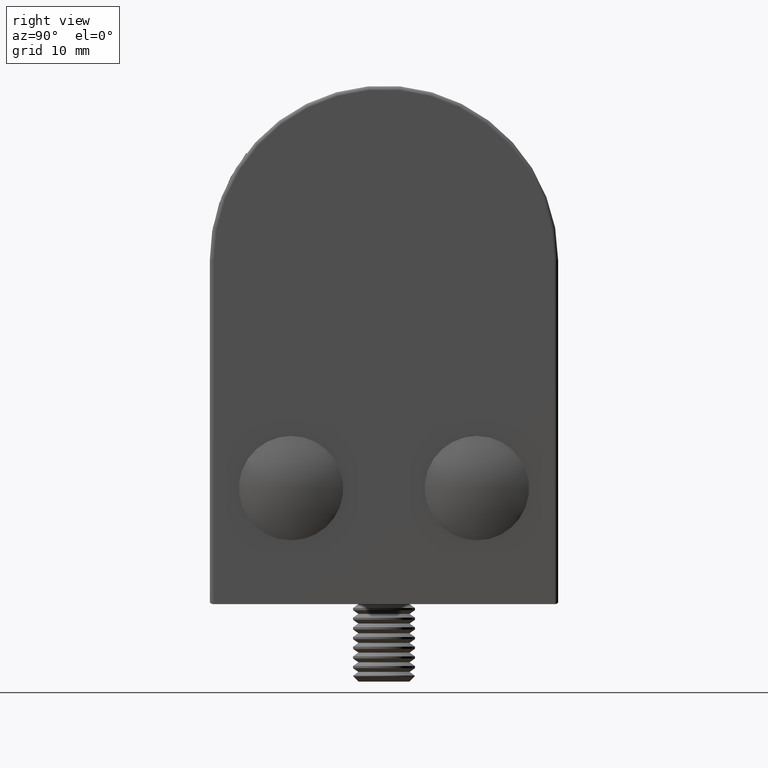
[diagram: clean part render]
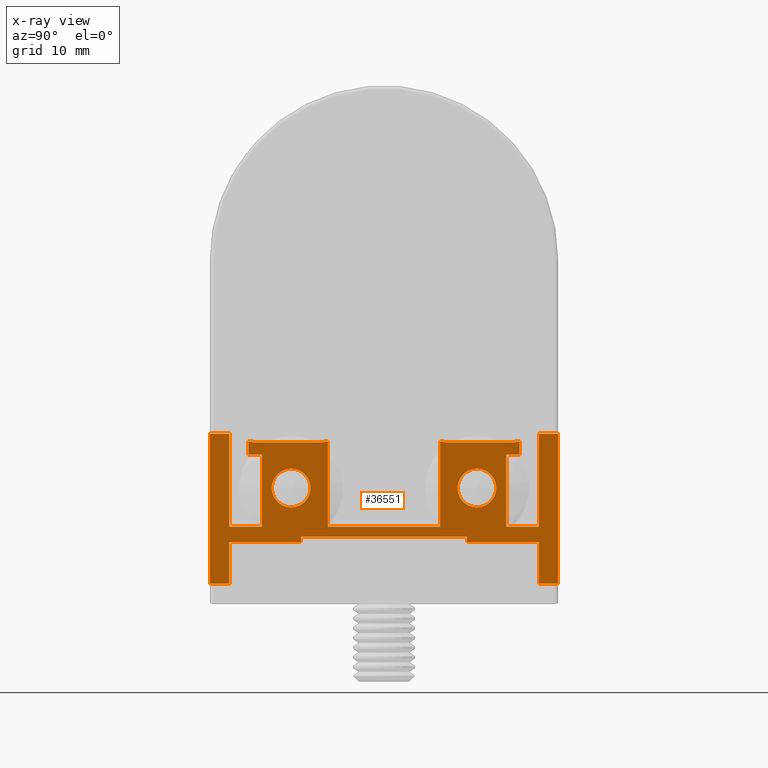
[diagram: x-ray — body ghosted, one internal face saturated and labeled with its STEP entity id]
A machine part, right view, then the same camera in x-ray: the body is ghosted and one INTERNAL B-rep face — a face not visible from any outside direction — is saturated and labeled: STEP entity #36551.
In plain terms, the highlighted planar face has unit normal (-1, 0, 0).
Its self-contained STEP definition (entity closure, byte-faithful):
#713 = LINE ( 'NONE', #3083, #81065 ) ;
#777 = VECTOR ( 'NONE', #25656, 1000.000000000000000 ) ;
#900 = EDGE_CURVE ( 'NONE', #73061, #73061, #46361, .T. ) ;
#954 = CARTESIAN_POINT ( 'NONE',  ( 24.00000000000000000, 22.50000000000001776, 17.99999999999999645 ) ) ;
#1290 = DIRECTION ( 'NONE',  ( 1.000000000000000000, -0.000000000000000000, -0.000000000000000000 ) ) ;
#1360 = LINE ( 'NONE', #31201, #68879 ) ;
#1392 = LINE ( 'NONE', #8688, #34103 ) ;
#1429 = LINE ( 'NONE', #28836, #56140 ) ;
#1437 = CARTESIAN_POINT ( 'NONE',  ( 24.00000000000000000, 17.50000000000002132, 17.00000000000000000 ) ) ;
#1683 = VECTOR ( 'NONE', #14181, 1000.000000000000000 ) ;
#1765 = VERTEX_POINT ( 'NONE', #2342 ) ;
#1959 = CARTESIAN_POINT ( 'NONE',  ( 24.00000000000000000, 20.00000000000002132, 4.000000000000000000 ) ) ;
#2144 = EDGE_CURVE ( 'NONE', #62094, #57993, #60110, .T. ) ;
#2207 = VECTOR ( 'NONE', #55996, 1000.000000000000000 ) ;
#2342 = CARTESIAN_POINT ( 'NONE',  ( 24.00000000000000000, -20.00000000000002132, 6.000000000000000000 ) ) ;
#2557 = CARTESIAN_POINT ( 'NONE',  ( 24.00000000000000000, 0.000000000000000000, 0.000000000000000000 ) ) ;
#2763 = LINE ( 'NONE', #51614, #11643 ) ;
#3083 = CARTESIAN_POINT ( 'NONE',  ( 24.00000000000000000, -22.50000000000002132, 6.000000000000000000 ) ) ;
#3115 = CARTESIAN_POINT ( 'NONE',  ( 24.00000000000000000, 17.50000000000002132, 15.30000000000000071 ) ) ;
#3128 = CARTESIAN_POINT ( 'NONE',  ( 24.00000000000000000, -20.00000000000002132, 3.999999999999994671 ) ) ;
#3353 = CARTESIAN_POINT ( 'NONE',  ( 24.00000000000000000, 11.99999999999999822, 8.500000000000010658 ) ) ;
#4610 = VECTOR ( 'NONE', #54502, 1000.000000000000000 ) ;
#4830 = CARTESIAN_POINT ( 'NONE',  ( 24.00000000000000000, -10.69999999999999929, 0.000000000000000000 ) ) ;
#4929 = ORIENTED_EDGE ( 'NONE', *, *, #27480, .T. ) ;
#4989 = DIRECTION ( 'NONE',  ( 0.000000000000000000, 1.000000000000000000, 0.000000000000000000 ) ) ;
#5155 = AXIS2_PLACEMENT_3D ( 'NONE', #79544, #10189, #55286 ) ;
#5201 = CARTESIAN_POINT ( 'NONE',  ( 24.00000000000000000, -20.00000000000002132, 17.99999999999999289 ) ) ;
#5588 = LINE ( 'NONE', #72637, #71142 ) ;
#5728 = CARTESIAN_POINT ( 'NONE',  ( 24.00000000000000000, -10.69999999999999929, 4.700000000000000178 ) ) ;
#6660 = VECTOR ( 'NONE', #68426, 1000.000000000000000 ) ;
#7340 = VECTOR ( 'NONE', #62453, 1000.000000000000000 ) ;
#7358 = LINE ( 'NONE', #25835, #48160 ) ;
#8158 = DIRECTION ( 'NONE',  ( -0.000000000000000000, -1.000000000000000000, -0.000000000000000000 ) ) ;
#8234 = LINE ( 'NONE', #43665, #73779 ) ;
#8268 = ORIENTED_EDGE ( 'NONE', *, *, #36041, .T. ) ;
#8326 = CARTESIAN_POINT ( 'NONE',  ( 24.00000000000000000, -12.00000000000000178, 8.500000000000007105 ) ) ;
#8418 = VERTEX_POINT ( 'NONE', #71750 ) ;
#8688 = CARTESIAN_POINT ( 'NONE',  ( 24.00000000000000000, -20.00000000000002132, 3.999999999999994671 ) ) ;
#8928 = AXIS2_PLACEMENT_3D ( 'NONE', #2557, #41398, #15282 ) ;
#9229 = ORIENTED_EDGE ( 'NONE', *, *, #30100, .F. ) ;
#9234 = DIRECTION ( 'NONE',  ( -0.000000000000000000, 1.000000000000000000, -0.000000000000000000 ) ) ;
#9328 = LINE ( 'NONE', #37087, #61084 ) ;
#9551 = VERTEX_POINT ( 'NONE', #1959 ) ;
#9792 = CARTESIAN_POINT ( 'NONE',  ( 24.00000000000000000, 20.00000000000002487, -1.374619898253302219 ) ) ;
#10004 = CARTESIAN_POINT ( 'NONE',  ( 24.00000000000000000, 15.80000000000002203, 6.000000000000000000 ) ) ;
#10146 = VERTEX_POINT ( 'NONE', #63277 ) ;
#10155 = EDGE_CURVE ( 'NONE', #77095, #11412, #74743, .T. ) ;
#10189 = DIRECTION ( 'NONE',  ( 1.000000000000000000, -0.000000000000000000, -0.000000000000000000 ) ) ;
#10477 = VERTEX_POINT ( 'NONE', #48234 ) ;
#10491 = ORIENTED_EDGE ( 'NONE', *, *, #68325, .F. ) ;
#11100 = EDGE_CURVE ( 'NONE', #25748, #25370, #8234, .T. ) ;
#11412 = VERTEX_POINT ( 'NONE', #56442 ) ;
#11581 = CARTESIAN_POINT ( 'NONE',  ( 24.00000000000000000, -20.00000000000002132, 17.99999999999999289 ) ) ;
#11615 = CARTESIAN_POINT ( 'NONE',  ( 24.00000000000000000, 7.250000000000000000, 17.00000000000000000 ) ) ;
#11643 = VECTOR ( 'NONE', #14030, 1000.000000000000000 ) ;
#12102 = EDGE_CURVE ( 'NONE', #21797, #9551, #17307, .T. ) ;
#12113 = AXIS2_PLACEMENT_3D ( 'NONE', #45482, #1290, #13765 ) ;
#12221 = VECTOR ( 'NONE', #54851, 1000.000000000000000 ) ;
#13247 = VECTOR ( 'NONE', #75721, 1000.000000000000000 ) ;
#13461 = VECTOR ( 'NONE', #30396, 1000.000000000000000 ) ;
#13765 = DIRECTION ( 'NONE',  ( 0.000000000000000000, 0.000000000000000000, -1.000000000000000000 ) ) ;
#13885 = CARTESIAN_POINT ( 'NONE',  ( 24.00000000000000000, 17.00000000000002487, 16.89999999999999503 ) ) ;
#14030 = DIRECTION ( 'NONE',  ( 0.000000000000000000, 0.000000000000000000, 1.000000000000000000 ) ) ;
#14181 = DIRECTION ( 'NONE',  ( 0.000000000000000000, 0.000000000000000000, -1.000000000000000000 ) ) ;
#14749 = ORIENTED_EDGE ( 'NONE', *, *, #39637, .F. ) ;
#14931 = VERTEX_POINT ( 'NONE', #58388 ) ;
#15282 = DIRECTION ( 'NONE',  ( -0.000000000000000000, 0.000000000000000000, 1.000000000000000000 ) ) ;
#15384 = EDGE_CURVE ( 'NONE', #57993, #72293, #5588, .T. ) ;
#15500 = VECTOR ( 'NONE', #48089, 1000.000000000000000 ) ;
#15537 = ORIENTED_EDGE ( 'NONE', *, *, #54834, .F. ) ;
#15595 = LINE ( 'NONE', #58683, #1683 ) ;
#15750 = VERTEX_POINT ( 'NONE', #51144 ) ;
#15896 = DIRECTION ( 'NONE',  ( 0.000000000000000000, 1.000000000000000000, 1.301042606982604088E-16 ) ) ;
#16310 = LINE ( 'NONE', #49765, #46137 ) ;
#16410 = VECTOR ( 'NONE', #20182, 1000.000000000000000 ) ;
#17045 = CARTESIAN_POINT ( 'NONE',  ( 24.00000000000000000, 0.000000000000000000, 4.700000000000000178 ) ) ;
#17233 = ORIENTED_EDGE ( 'NONE', *, *, #70701, .F. ) ;
#17307 = LINE ( 'NONE', #3128, #19286 ) ;
#17380 = VERTEX_POINT ( 'NONE', #78059 ) ;
#17525 = EDGE_CURVE ( 'NONE', #40630, #56788, #1392, .T. ) ;
#18002 = DIRECTION ( 'NONE',  ( -0.000000000000000000, 1.927470528863119542E-16, -1.000000000000000000 ) ) ;
#18013 = ORIENTED_EDGE ( 'NONE', *, *, #40698, .F. ) ;
#18155 = LINE ( 'NONE', #46179, #51958 ) ;
#18164 = LINE ( 'NONE', #81032, #37010 ) ;
#19286 = VECTOR ( 'NONE', #15896, 1000.000000000000000 ) ;
#19564 = VERTEX_POINT ( 'NONE', #48669 ) ;
#19580 = EDGE_CURVE ( 'NONE', #11412, #82252, #22363, .T. ) ;
#19740 = CARTESIAN_POINT ( 'NONE',  ( 24.00000000000000000, 17.00000000000002487, 16.99999999999999289 ) ) ;
#19909 = ORIENTED_EDGE ( 'NONE', *, *, #15384, .F. ) ;
#20182 = DIRECTION ( 'NONE',  ( 0.000000000000000000, 1.000000000000000000, 0.000000000000000000 ) ) ;
#20527 = CARTESIAN_POINT ( 'NONE',  ( 24.00000000000000000, 7.250000000000000000, 17.00000000000000000 ) ) ;
#21238 = CARTESIAN_POINT ( 'NONE',  ( 24.00000000000000000, 7.750000000000000888, 16.99999999999999289 ) ) ;
#21650 = CARTESIAN_POINT ( 'NONE',  ( 24.00000000000000000, -20.00000000000002132, 3.999999999999994671 ) ) ;
#21797 = VERTEX_POINT ( 'NONE', #60632 ) ;
#22014 = EDGE_CURVE ( 'NONE', #44406, #10477, #60942, .T. ) ;
#22324 = CARTESIAN_POINT ( 'NONE',  ( 24.00000000000000000, -22.50000000000002132, 17.99999999999999645 ) ) ;
#22363 = LINE ( 'NONE', #23313, #64005 ) ;
#23011 = FACE_BOUND ( 'NONE', #32308, .T. ) ;
#23313 = CARTESIAN_POINT ( 'NONE',  ( 24.00000000000000000, 7.750000000000000888, 16.89999999999999503 ) ) ;
#23419 = DIRECTION ( 'NONE',  ( 0.000000000000000000, 1.000000000000000000, 1.387778780781444256E-14 ) ) ;
#23486 = VERTEX_POINT ( 'NONE', #34052 ) ;
#23636 = ORIENTED_EDGE ( 'NONE', *, *, #12102, .T. ) ;
#23916 = CARTESIAN_POINT ( 'NONE',  ( 24.00000000000000000, -17.00000000000002487, 16.99999999999999289 ) ) ;
#25005 = VECTOR ( 'NONE', #51880, 1000.000000000000000 ) ;
#25370 = VERTEX_POINT ( 'NONE', #65888 ) ;
#25656 = DIRECTION ( 'NONE',  ( -0.000000000000000000, -0.000000000000000000, 1.000000000000000000 ) ) ;
#25748 = VERTEX_POINT ( 'NONE', #33785 ) ;
#25835 = CARTESIAN_POINT ( 'NONE',  ( 24.00000000000000000, 20.00000000000002487, -3.061616997868368350E-16 ) ) ;
#26087 = VERTEX_POINT ( 'NONE', #3115 ) ;
#26101 = DIRECTION ( 'NONE',  ( 0.000000000000000000, 0.000000000000000000, 1.000000000000000000 ) ) ;
#26484 = ORIENTED_EDGE ( 'NONE', *, *, #44401, .F. ) ;
#26787 = DIRECTION ( 'NONE',  ( -0.000000000000000000, -1.000000000000000000, 1.387778780781446464E-15 ) ) ;
#27427 = EDGE_CURVE ( 'NONE', #10477, #19564, #7358, .T. ) ;
#27480 = EDGE_CURVE ( 'NONE', #8418, #44406, #70944, .T. ) ;
#27638 = DIRECTION ( 'NONE',  ( 0.000000000000000000, 0.000000000000000000, -1.000000000000000000 ) ) ;
#27662 = EDGE_CURVE ( 'NONE', #1765, #66866, #35170, .T. ) ;
#27667 = EDGE_CURVE ( 'NONE', #57309, #10146, #16310, .T. ) ;
#28836 = CARTESIAN_POINT ( 'NONE',  ( 24.00000000000000000, 20.00000000000002487, -3.061616997868368350E-16 ) ) ;
#30100 = EDGE_CURVE ( 'NONE', #25370, #23486, #2763, .T. ) ;
#30221 = CARTESIAN_POINT ( 'NONE',  ( 24.00000000000000000, -15.80000000000002203, 6.000000000000000000 ) ) ;
#30396 = DIRECTION ( 'NONE',  ( 0.000000000000000000, 0.000000000000000000, 1.000000000000000000 ) ) ;
#30729 = EDGE_CURVE ( 'NONE', #78534, #1765, #713, .T. ) ;
#30993 = DIRECTION ( 'NONE',  ( 0.000000000000000000, 0.000000000000000000, -1.000000000000000000 ) ) ;
#31201 = CARTESIAN_POINT ( 'NONE',  ( 24.00000000000000000, -22.50000000000002132, 6.000000000000000000 ) ) ;
#31476 = LINE ( 'NONE', #73498, #15500 ) ;
#31629 = EDGE_CURVE ( 'NONE', #66866, #57309, #50438, .T. ) ;
#31954 = ORIENTED_EDGE ( 'NONE', *, *, #35511, .T. ) ;
#32308 = EDGE_LOOP ( 'NONE', ( #64394 ) ) ;
#33030 = VECTOR ( 'NONE', #8158, 1000.000000000000000 ) ;
#33286 = ORIENTED_EDGE ( 'NONE', *, *, #62155, .F. ) ;
#33559 = ORIENTED_EDGE ( 'NONE', *, *, #47246, .T. ) ;
#33757 = CARTESIAN_POINT ( 'NONE',  ( 24.00000000000000000, -22.50000000000002132, 6.000000000000000000 ) ) ;
#33785 = CARTESIAN_POINT ( 'NONE',  ( 24.00000000000000000, -15.80000000000002203, 15.30000000000000071 ) ) ;
#34052 = CARTESIAN_POINT ( 'NONE',  ( 24.00000000000000000, -17.50000000000002132, 17.00000000000000000 ) ) ;
#34103 = VECTOR ( 'NONE', #40637, 1000.000000000000000 ) ;
#34539 = EDGE_CURVE ( 'NONE', #81901, #81901, #63024, .T. ) ;
#34667 = ORIENTED_EDGE ( 'NONE', *, *, #17525, .T. ) ;
#34872 = EDGE_CURVE ( 'NONE', #19564, #79230, #1360, .T. ) ;
#35170 = LINE ( 'NONE', #5201, #59058 ) ;
#35466 = VECTOR ( 'NONE', #26787, 1000.000000000000000 ) ;
#35511 = EDGE_CURVE ( 'NONE', #43761, #36358, #58971, .T. ) ;
#35617 = EDGE_CURVE ( 'NONE', #72293, #17380, #45018, .T. ) ;
#36041 = EDGE_CURVE ( 'NONE', #10146, #50351, #69817, .T. ) ;
#36151 = ORIENTED_EDGE ( 'NONE', *, *, #34539, .F. ) ;
#36358 = VERTEX_POINT ( 'NONE', #36488 ) ;
#36488 = CARTESIAN_POINT ( 'NONE',  ( 24.00000000000000000, 10.69999999999999929, 4.700000000000000178 ) ) ;
#36551 = ADVANCED_FACE ( 'NONE', ( #43991, #52914, #23011 ), #78246, .F. ) ;
#36917 = VECTOR ( 'NONE', #47722, 1000.000000000000000 ) ;
#37010 = VECTOR ( 'NONE', #80446, 1000.000000000000000 ) ;
#37087 = CARTESIAN_POINT ( 'NONE',  ( 24.00000000000000000, 15.80000000000002203, 15.30000000000000071 ) ) ;
#37418 = ORIENTED_EDGE ( 'NONE', *, *, #34872, .T. ) ;
#37566 = DIRECTION ( 'NONE',  ( -0.000000000000000000, -1.000000000000000000, -0.000000000000000000 ) ) ;
#37846 = ORIENTED_EDGE ( 'NONE', *, *, #31629, .T. ) ;
#37968 = ORIENTED_EDGE ( 'NONE', *, *, #68224, .T. ) ;
#38119 = LINE ( 'NONE', #13885, #61013 ) ;
#38419 = EDGE_CURVE ( 'NONE', #14931, #79230, #9328, .T. ) ;
#38941 = DIRECTION ( 'NONE',  ( -0.000000000000000000, -0.000000000000000000, 1.000000000000000000 ) ) ;
#39637 = EDGE_CURVE ( 'NONE', #23486, #46253, #41921, .T. ) ;
#40278 = VERTEX_POINT ( 'NONE', #9792 ) ;
#40332 = ORIENTED_EDGE ( 'NONE', *, *, #27427, .T. ) ;
#40577 = EDGE_CURVE ( 'NONE', #55719, #26087, #15595, .T. ) ;
#40630 = VERTEX_POINT ( 'NONE', #21650 ) ;
#40637 = DIRECTION ( 'NONE',  ( 0.000000000000000000, 1.000000000000000000, 1.301042606982604088E-16 ) ) ;
#40698 = EDGE_CURVE ( 'NONE', #49402, #55719, #31476, .T. ) ;
#41398 = DIRECTION ( 'NONE',  ( -1.000000000000000000, 0.000000000000000000, -0.000000000000000000 ) ) ;
#41521 = ORIENTED_EDGE ( 'NONE', *, *, #72032, .T. ) ;
#41921 = LINE ( 'NONE', #66533, #36917 ) ;
#42011 = VECTOR ( 'NONE', #23419, 1000.000000000000000 ) ;
#42347 = CARTESIAN_POINT ( 'NONE',  ( 24.00000000000000000, 10.69999999999999929, 0.000000000000000000 ) ) ;
#43294 = LINE ( 'NONE', #4830, #13461 ) ;
#43665 = CARTESIAN_POINT ( 'NONE',  ( 24.00000000000000000, -17.50000000000002132, 15.30000000000000071 ) ) ;
#43761 = VERTEX_POINT ( 'NONE', #5728 ) ;
#43991 = FACE_BOUND ( 'NONE', #46346, .T. ) ;
#44082 = VECTOR ( 'NONE', #75781, 1000.000000000000000 ) ;
#44401 = EDGE_CURVE ( 'NONE', #78534, #25748, #18155, .T. ) ;
#44406 = VERTEX_POINT ( 'NONE', #954 ) ;
#44526 = CARTESIAN_POINT ( 'NONE',  ( 24.00000000000000000, 7.250000000000002665, 6.000000000000000000 ) ) ;
#44570 = CARTESIAN_POINT ( 'NONE',  ( 24.00000000000000000, -20.00000000000002132, -1.374619898253302219 ) ) ;
#44823 = CARTESIAN_POINT ( 'NONE',  ( 24.00000000000000000, -20.00000000000002132, 17.99999999999999289 ) ) ;
#45018 = LINE ( 'NONE', #67561, #42011 ) ;
#45420 = CARTESIAN_POINT ( 'NONE',  ( 24.00000000000000000, -10.69999999999999929, 3.999999999999995559 ) ) ;
#45482 = CARTESIAN_POINT ( 'NONE',  ( 24.00000000000000000, 11.99999999999999822, 11.00000000000000178 ) ) ;
#45872 = EDGE_CURVE ( 'NONE', #17380, #15750, #50424, .T. ) ;
#45942 = CARTESIAN_POINT ( 'NONE',  ( 24.00000000000000000, 7.750000000000000888, 16.99999999999999289 ) ) ;
#46022 = CARTESIAN_POINT ( 'NONE',  ( 24.00000000000000000, 17.50000000000002132, 15.30000000000000071 ) ) ;
#46137 = VECTOR ( 'NONE', #72127, 1000.000000000000000 ) ;
#46179 = CARTESIAN_POINT ( 'NONE',  ( 24.00000000000000000, -15.80000000000002203, 15.30000000000000071 ) ) ;
#46253 = VERTEX_POINT ( 'NONE', #23916 ) ;
#46346 = EDGE_LOOP ( 'NONE', ( #36151 ) ) ;
#46361 = CIRCLE ( 'NONE', #5155, 2.499999999999990230 ) ;
#47242 = CARTESIAN_POINT ( 'NONE',  ( 24.00000000000000000, 22.50000000000001776, 17.99999999999999645 ) ) ;
#47246 = EDGE_CURVE ( 'NONE', #56788, #43761, #43294, .T. ) ;
#47722 = DIRECTION ( 'NONE',  ( 0.000000000000000000, 1.000000000000000000, -1.387778780781454195E-14 ) ) ;
#47997 = VECTOR ( 'NONE', #27638, 1000.000000000000000 ) ;
#48089 = DIRECTION ( 'NONE',  ( 0.000000000000000000, 1.000000000000000000, 1.387778780781454195E-14 ) ) ;
#48160 = VECTOR ( 'NONE', #76575, 1000.000000000000000 ) ;
#48234 = CARTESIAN_POINT ( 'NONE',  ( 24.00000000000000000, 20.00000000000002132, 17.99999999999999645 ) ) ;
#48447 = ORIENTED_EDGE ( 'NONE', *, *, #54748, .T. ) ;
#48669 = CARTESIAN_POINT ( 'NONE',  ( 24.00000000000000000, 20.00000000000001776, 6.000000000000000000 ) ) ;
#49193 = ORIENTED_EDGE ( 'NONE', *, *, #2144, .F. ) ;
#49402 = VERTEX_POINT ( 'NONE', #19740 ) ;
#49504 = DIRECTION ( 'NONE',  ( 0.000000000000000000, -1.000000000000000000, 0.000000000000000000 ) ) ;
#49765 = CARTESIAN_POINT ( 'NONE',  ( 24.00000000000000000, -22.50000000000001776, 0.000000000000000000 ) ) ;
#50351 = VERTEX_POINT ( 'NONE', #44570 ) ;
#50424 = LINE ( 'NONE', #61373, #4610 ) ;
#50438 = LINE ( 'NONE', #22324, #35466 ) ;
#51144 = CARTESIAN_POINT ( 'NONE',  ( 24.00000000000000000, -7.250000000000000000, 5.999999999999998224 ) ) ;
#51614 = CARTESIAN_POINT ( 'NONE',  ( 24.00000000000000000, -17.50000000000002132, 17.00000000000000000 ) ) ;
#51741 = EDGE_CURVE ( 'NONE', #50351, #40630, #53449, .T. ) ;
#51880 = DIRECTION ( 'NONE',  ( 0.000000000000000000, -1.000000000000000000, 0.000000000000000000 ) ) ;
#51958 = VECTOR ( 'NONE', #76919, 1000.000000000000000 ) ;
#52179 = CARTESIAN_POINT ( 'NONE',  ( 24.00000000000000000, -7.750000000000000888, 16.89999999999999503 ) ) ;
#52306 = CARTESIAN_POINT ( 'NONE',  ( 24.00000000000000000, -17.00000000000002487, 16.89999999999999503 ) ) ;
#52573 = EDGE_LOOP ( 'NONE', ( #58631, #8268, #75793, #34667, #33559, #31954, #62464, #23636, #48447, #41521, #4929, #76979, #40332, #37418, #78345, #60439, #67472, #18013, #17233, #56460, #71125, #15537, #10491, #37968, #61921, #57772, #19909, #49193, #33286, #14749, #9229, #64411, #26484, #52690, #73623, #37846 ) ) ;
#52690 = ORIENTED_EDGE ( 'NONE', *, *, #30729, .T. ) ;
#52914 = FACE_OUTER_BOUND ( 'NONE', #52573, .T. ) ;
#53065 = DIRECTION ( 'NONE',  ( -0.000000000000000000, -0.000000000000000000, 1.000000000000000000 ) ) ;
#53449 = LINE ( 'NONE', #44823, #777 ) ;
#54502 = DIRECTION ( 'NONE',  ( 0.000000000000000000, 0.000000000000000000, -1.000000000000000000 ) ) ;
#54748 = EDGE_CURVE ( 'NONE', #9551, #40278, #1429, .T. ) ;
#54834 = EDGE_CURVE ( 'NONE', #62359, #77095, #67886, .T. ) ;
#54851 = DIRECTION ( 'NONE',  ( 0.000000000000000000, 1.000000000000000000, 0.000000000000000000 ) ) ;
#55286 = DIRECTION ( 'NONE',  ( 0.000000000000000000, 0.000000000000000000, -1.000000000000000000 ) ) ;
#55719 = VERTEX_POINT ( 'NONE', #1437 ) ;
#55793 = CARTESIAN_POINT ( 'NONE',  ( 24.00000000000000000, -7.750000000000000888, 16.99999999999999289 ) ) ;
#55963 = LINE ( 'NONE', #33757, #33030 ) ;
#55996 = DIRECTION ( 'NONE',  ( 0.000000000000000000, 0.000000000000000000, 1.000000000000000000 ) ) ;
#56140 = VECTOR ( 'NONE', #18002, 1000.000000000000000 ) ;
#56442 = CARTESIAN_POINT ( 'NONE',  ( 24.00000000000000000, 7.750000000000000888, 16.89999999999999503 ) ) ;
#56460 = ORIENTED_EDGE ( 'NONE', *, *, #19580, .F. ) ;
#56788 = VERTEX_POINT ( 'NONE', #45420 ) ;
#57309 = VERTEX_POINT ( 'NONE', #70495 ) ;
#57711 = EDGE_CURVE ( 'NONE', #26087, #14931, #58843, .T. ) ;
#57772 = ORIENTED_EDGE ( 'NONE', *, *, #35617, .F. ) ;
#57933 = EDGE_CURVE ( 'NONE', #36358, #21797, #64307, .T. ) ;
#57993 = VERTEX_POINT ( 'NONE', #68151 ) ;
#58388 = CARTESIAN_POINT ( 'NONE',  ( 24.00000000000000000, 15.80000000000002203, 15.30000000000000071 ) ) ;
#58631 = ORIENTED_EDGE ( 'NONE', *, *, #27667, .T. ) ;
#58683 = CARTESIAN_POINT ( 'NONE',  ( 24.00000000000000000, 17.50000000000002132, 17.00000000000000000 ) ) ;
#58843 = LINE ( 'NONE', #46022, #25005 ) ;
#58971 = LINE ( 'NONE', #17045, #12221 ) ;
#59058 = VECTOR ( 'NONE', #38941, 1000.000000000000000 ) ;
#60110 = LINE ( 'NONE', #52179, #16410 ) ;
#60439 = ORIENTED_EDGE ( 'NONE', *, *, #57711, .F. ) ;
#60632 = CARTESIAN_POINT ( 'NONE',  ( 24.00000000000000000, 10.69999999999999751, 3.999999999999999112 ) ) ;
#60942 = LINE ( 'NONE', #63643, #44082 ) ;
#61013 = VECTOR ( 'NONE', #26101, 1000.000000000000000 ) ;
#61084 = VECTOR ( 'NONE', #30993, 1000.000000000000000 ) ;
#61110 = DIRECTION ( 'NONE',  ( -0.000000000000000000, -1.000000000000000000, -0.000000000000000000 ) ) ;
#61373 = CARTESIAN_POINT ( 'NONE',  ( 24.00000000000000000, -7.250000000000000000, 17.00000000000000000 ) ) ;
#61921 = ORIENTED_EDGE ( 'NONE', *, *, #45872, .F. ) ;
#62064 = VECTOR ( 'NONE', #53065, 1000.000000000000000 ) ;
#62094 = VERTEX_POINT ( 'NONE', #52306 ) ;
#62155 = EDGE_CURVE ( 'NONE', #46253, #62094, #18164, .T. ) ;
#62359 = VERTEX_POINT ( 'NONE', #20527 ) ;
#62453 = DIRECTION ( 'NONE',  ( 0.000000000000000000, 1.000000000000000000, -1.387778780781444256E-14 ) ) ;
#62464 = ORIENTED_EDGE ( 'NONE', *, *, #57933, .T. ) ;
#63024 = CIRCLE ( 'NONE', #12113, 2.499999999999990230 ) ;
#63277 = CARTESIAN_POINT ( 'NONE',  ( 24.00000000000000000, -22.50000000000002132, -1.374619898253298667 ) ) ;
#63643 = CARTESIAN_POINT ( 'NONE',  ( 24.00000000000000000, 20.00000000000002132, 17.99999999999999645 ) ) ;
#64005 = VECTOR ( 'NONE', #4989, 1000.000000000000000 ) ;
#64307 = LINE ( 'NONE', #42347, #6660 ) ;
#64394 = ORIENTED_EDGE ( 'NONE', *, *, #900, .F. ) ;
#64411 = ORIENTED_EDGE ( 'NONE', *, *, #11100, .F. ) ;
#65888 = CARTESIAN_POINT ( 'NONE',  ( 24.00000000000000000, -17.50000000000002132, 15.30000000000000071 ) ) ;
#66533 = CARTESIAN_POINT ( 'NONE',  ( 24.00000000000000000, -17.00000000000002487, 16.99999999999999289 ) ) ;
#66866 = VERTEX_POINT ( 'NONE', #11581 ) ;
#67472 = ORIENTED_EDGE ( 'NONE', *, *, #40577, .F. ) ;
#67561 = CARTESIAN_POINT ( 'NONE',  ( 24.00000000000000000, -7.250000000000000000, 17.00000000000000000 ) ) ;
#67886 = LINE ( 'NONE', #11615, #7340 ) ;
#68151 = CARTESIAN_POINT ( 'NONE',  ( 24.00000000000000000, -7.750000000000000888, 16.89999999999999503 ) ) ;
#68224 = EDGE_CURVE ( 'NONE', #81266, #15750, #55963, .T. ) ;
#68325 = EDGE_CURVE ( 'NONE', #81266, #62359, #76620, .T. ) ;
#68416 = CARTESIAN_POINT ( 'NONE',  ( 24.00000000000000000, 7.250000000000000000, 17.00000000000000000 ) ) ;
#68426 = DIRECTION ( 'NONE',  ( 0.000000000000000000, -0.000000000000000000, -1.000000000000000000 ) ) ;
#68846 = LINE ( 'NONE', #69413, #13247 ) ;
#68879 = VECTOR ( 'NONE', #37566, 1000.000000000000000 ) ;
#69413 = CARTESIAN_POINT ( 'NONE',  ( 24.00000000000000000, -22.50000000000002132, -1.374619898253302219 ) ) ;
#69817 = LINE ( 'NONE', #72002, #79699 ) ;
#70495 = CARTESIAN_POINT ( 'NONE',  ( 24.00000000000000000, -22.50000000000002132, 17.99999999999999645 ) ) ;
#70701 = EDGE_CURVE ( 'NONE', #82252, #49402, #38119, .T. ) ;
#70944 = LINE ( 'NONE', #47242, #62064 ) ;
#71125 = ORIENTED_EDGE ( 'NONE', *, *, #10155, .F. ) ;
#71142 = VECTOR ( 'NONE', #78196, 1000.000000000000000 ) ;
#71750 = CARTESIAN_POINT ( 'NONE',  ( 24.00000000000000000, 22.50000000000002132, -1.374619898253302219 ) ) ;
#72002 = CARTESIAN_POINT ( 'NONE',  ( 24.00000000000000000, -22.50000000000002132, -1.374619898253302219 ) ) ;
#72032 = EDGE_CURVE ( 'NONE', #40278, #8418, #68846, .T. ) ;
#72127 = DIRECTION ( 'NONE',  ( -0.000000000000000000, 1.927470528863119542E-16, -1.000000000000000000 ) ) ;
#72293 = VERTEX_POINT ( 'NONE', #55793 ) ;
#72637 = CARTESIAN_POINT ( 'NONE',  ( 24.00000000000000000, -7.750000000000000888, 16.99999999999999289 ) ) ;
#73061 = VERTEX_POINT ( 'NONE', #8326 ) ;
#73498 = CARTESIAN_POINT ( 'NONE',  ( 24.00000000000000000, 17.00000000000002487, 16.99999999999999289 ) ) ;
#73623 = ORIENTED_EDGE ( 'NONE', *, *, #27662, .T. ) ;
#73779 = VECTOR ( 'NONE', #49504, 1000.000000000000000 ) ;
#74743 = LINE ( 'NONE', #21238, #47997 ) ;
#75721 = DIRECTION ( 'NONE',  ( -0.000000000000000000, 1.000000000000000000, -0.000000000000000000 ) ) ;
#75781 = DIRECTION ( 'NONE',  ( -0.000000000000000000, -1.000000000000000000, -0.000000000000000000 ) ) ;
#75793 = ORIENTED_EDGE ( 'NONE', *, *, #51741, .T. ) ;
#76575 = DIRECTION ( 'NONE',  ( -0.000000000000000000, 1.927470528863119542E-16, -1.000000000000000000 ) ) ;
#76620 = LINE ( 'NONE', #68416, #2207 ) ;
#76909 = CARTESIAN_POINT ( 'NONE',  ( 24.00000000000000000, 17.00000000000002842, 16.89999999999999503 ) ) ;
#76919 = DIRECTION ( 'NONE',  ( 0.000000000000000000, 0.000000000000000000, 1.000000000000000000 ) ) ;
#76979 = ORIENTED_EDGE ( 'NONE', *, *, #22014, .T. ) ;
#77095 = VERTEX_POINT ( 'NONE', #45942 ) ;
#78059 = CARTESIAN_POINT ( 'NONE',  ( 24.00000000000000000, -7.250000000000000000, 17.00000000000000000 ) ) ;
#78196 = DIRECTION ( 'NONE',  ( 0.000000000000000000, 0.000000000000000000, 1.000000000000000000 ) ) ;
#78246 = PLANE ( 'NONE',  #8928 ) ;
#78345 = ORIENTED_EDGE ( 'NONE', *, *, #38419, .F. ) ;
#78534 = VERTEX_POINT ( 'NONE', #30221 ) ;
#79230 = VERTEX_POINT ( 'NONE', #10004 ) ;
#79544 = CARTESIAN_POINT ( 'NONE',  ( 24.00000000000000000, -12.00000000000000178, 10.99999999999999822 ) ) ;
#79699 = VECTOR ( 'NONE', #9234, 1000.000000000000000 ) ;
#80446 = DIRECTION ( 'NONE',  ( 0.000000000000000000, 0.000000000000000000, -1.000000000000000000 ) ) ;
#81032 = CARTESIAN_POINT ( 'NONE',  ( 24.00000000000000000, -17.00000000000002487, 16.89999999999999503 ) ) ;
#81065 = VECTOR ( 'NONE', #61110, 1000.000000000000000 ) ;
#81266 = VERTEX_POINT ( 'NONE', #44526 ) ;
#81901 = VERTEX_POINT ( 'NONE', #3353 ) ;
#82252 = VERTEX_POINT ( 'NONE', #76909 ) ;